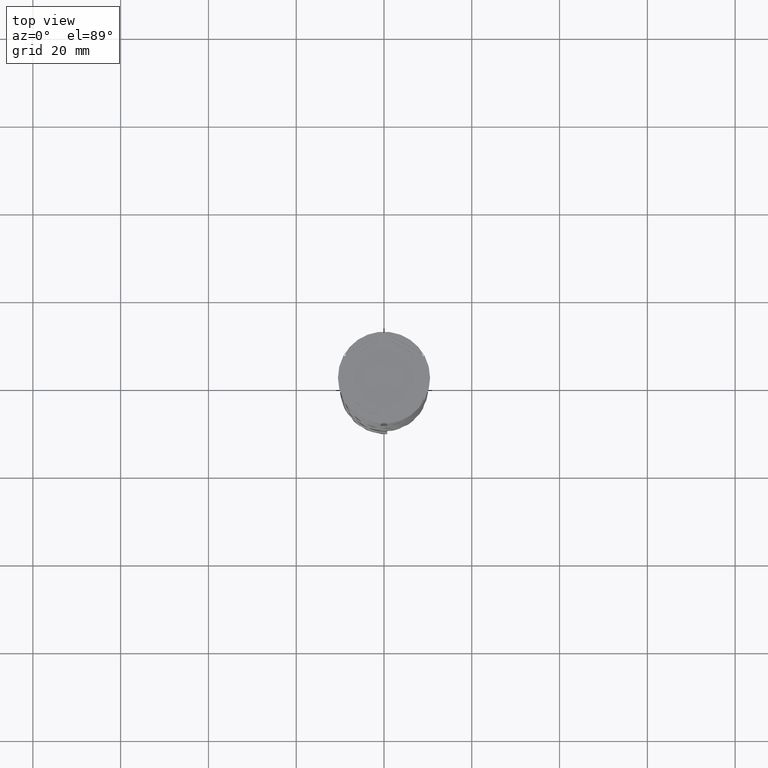
[diagram: clean part render]
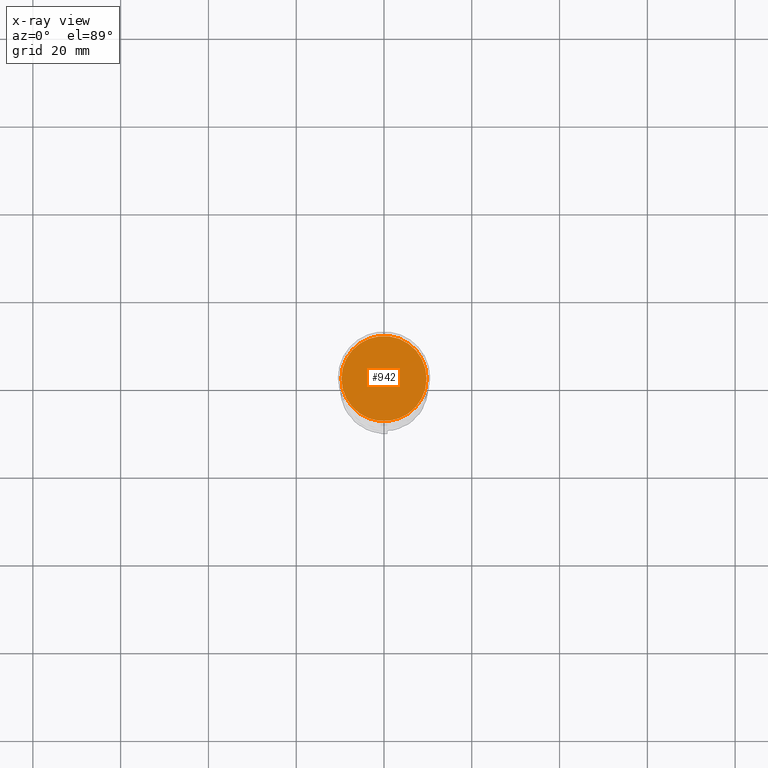
[diagram: x-ray — body ghosted, one internal face saturated and labeled with its STEP entity id]
A machine part, top view, then the same camera in x-ray: the body is ghosted and one INTERNAL B-rep face — a face not visible from any outside direction — is saturated and labeled: STEP entity #942.
In plain terms, the highlighted planar face has unit normal (0, 0, -1).
Its self-contained STEP definition (entity closure, byte-faithful):
#89 = AXIS2_PLACEMENT_3D ( 'NONE', #2652, #489, #1703 ) ;
#489 = DIRECTION ( 'NONE',  ( -0.000000000000000000, -0.000000000000000000, 1.000000000000000000 ) ) ;
#854 = DIRECTION ( 'NONE',  ( -1.000000000000000000, 0.000000000000000000, -0.000000000000000000 ) ) ;
#895 = DIRECTION ( 'NONE',  ( 0.000000000000000000, 0.000000000000000000, -1.000000000000000000 ) ) ;
#942 = ADVANCED_FACE ( 'NONE', ( #3269 ), #3613, .F. ) ;
#1292 = CARTESIAN_POINT ( 'NONE',  ( 9.700000000000002842, 1.206277097160143024E-15, -12.00000000000000000 ) ) ;
#1382 = VERTEX_POINT ( 'NONE', #2988 ) ;
#1703 = DIRECTION ( 'NONE',  ( -1.000000000000000000, 0.000000000000000000, 0.000000000000000000 ) ) ;
#1713 = DIRECTION ( 'NONE',  ( -1.000000000000000000, 0.000000000000000000, 0.000000000000000000 ) ) ;
#1757 = DIRECTION ( 'NONE',  ( -0.000000000000000000, -0.000000000000000000, 1.000000000000000000 ) ) ;
#1775 = CARTESIAN_POINT ( 'NONE',  ( 0.000000000000000000, 0.000000000000000000, -12.00000000000000000 ) ) ;
#1819 = CIRCLE ( 'NONE', #89, 9.700000000000002842 ) ;
#2034 = EDGE_LOOP ( 'NONE', ( #2841, #3694 ) ) ;
#2295 = EDGE_CURVE ( 'NONE', #1382, #3305, #3515, .T. ) ;
#2652 = CARTESIAN_POINT ( 'NONE',  ( 0.000000000000000000, 0.000000000000000000, -12.00000000000000000 ) ) ;
#2688 = CARTESIAN_POINT ( 'NONE',  ( 0.000000000000000000, 0.000000000000000000, -12.00000000000000000 ) ) ;
#2841 = ORIENTED_EDGE ( 'NONE', *, *, #2295, .T. ) ;
#2988 = CARTESIAN_POINT ( 'NONE',  ( -9.700000000000002842, 0.000000000000000000, -12.00000000000000000 ) ) ;
#3269 = FACE_OUTER_BOUND ( 'NONE', #2034, .T. ) ;
#3305 = VERTEX_POINT ( 'NONE', #1292 ) ;
#3443 = AXIS2_PLACEMENT_3D ( 'NONE', #2688, #895, #854 ) ;
#3515 = CIRCLE ( 'NONE', #3765, 9.700000000000002842 ) ;
#3535 = EDGE_CURVE ( 'NONE', #3305, #1382, #1819, .T. ) ;
#3613 = PLANE ( 'NONE',  #3443 ) ;
#3694 = ORIENTED_EDGE ( 'NONE', *, *, #3535, .T. ) ;
#3765 = AXIS2_PLACEMENT_3D ( 'NONE', #1775, #1757, #1713 ) ;